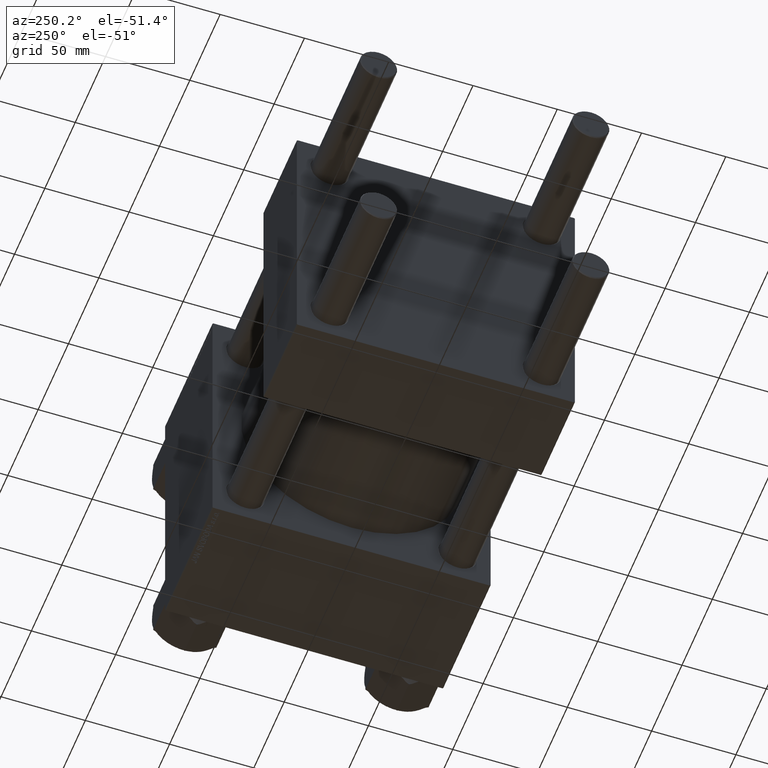
[diagram: clean part render]
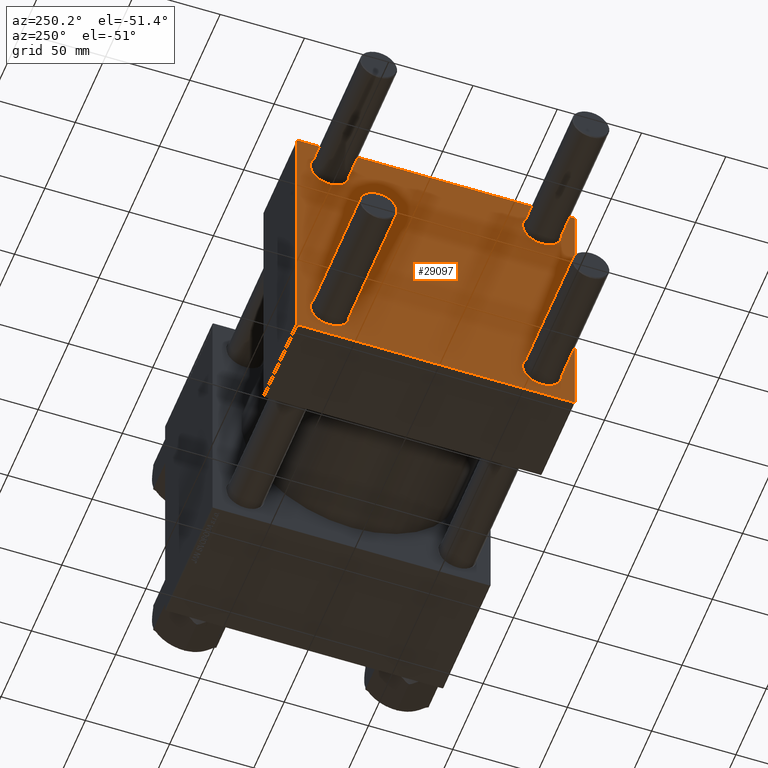
[diagram: same view with one face highlighted and labeled with its STEP entity id]
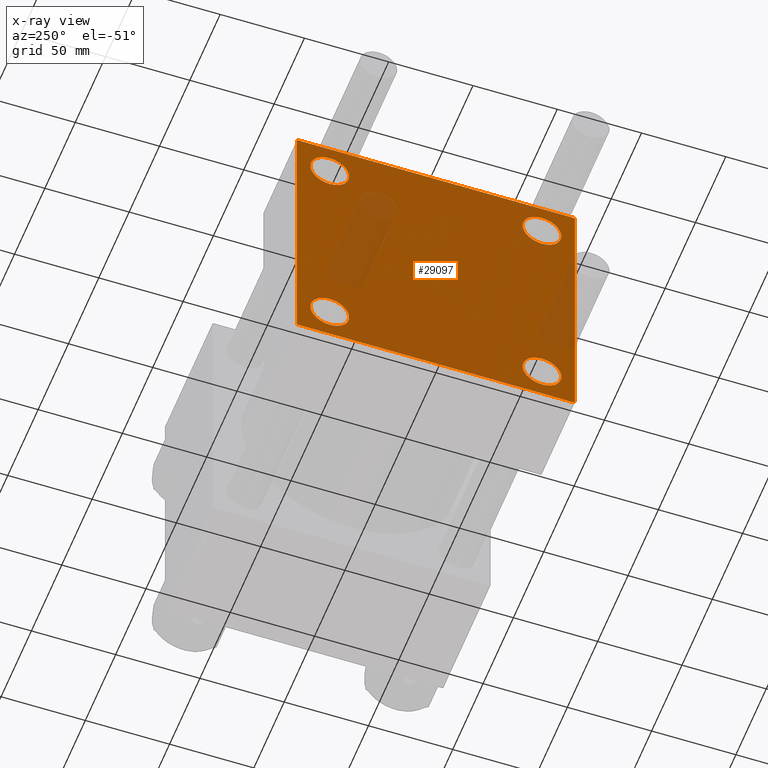
[diagram: x-ray of the same camera — body ghosted, the highlighted face saturated]
A machine part, auxiliary view. The second image highlights one B-rep face of the part: STEP entity #29097.
The next image is the same camera in x-ray: the body ghosted, the highlighted face saturated — about 12% of this face is hidden behind the body in this view.
In plain terms, the highlighted planar face has unit normal (-1, 0, 0).
Its self-contained STEP definition (entity closure, byte-faithful):
#249 = VERTEX_POINT ( 'NONE', #44050 ) ;
#412 = VERTEX_POINT ( 'NONE', #22389 ) ;
#742 = CARTESIAN_POINT ( 'NONE',  ( 0.000000000000000000, -82.49999999999997158, 82.00000000000001421 ) ) ;
#793 = CARTESIAN_POINT ( 'NONE',  ( 0.000000000000000000, 0.000000000000000000, 0.000000000000000000 ) ) ;
#1650 = VERTEX_POINT ( 'NONE', #30371 ) ;
#1796 = CARTESIAN_POINT ( 'NONE',  ( 0.000000000000000000, 62.95000000000000284, -74.45000000000001705 ) ) ;
#2097 = CARTESIAN_POINT ( 'NONE',  ( 0.000000000000000000, 82.00000000000005684, 82.50000000000002842 ) ) ;
#2507 = AXIS2_PLACEMENT_3D ( 'NONE', #45913, #11083, #13887 ) ;
#2614 = DIRECTION ( 'NONE',  ( 0.000000000000000000, 0.000000000000000000, 1.000000000000000000 ) ) ;
#3009 = DIRECTION ( 'NONE',  ( 0.000000000000000000, -1.000000000000000000, -1.682156097916903588E-16 ) ) ;
#3322 = VECTOR ( 'NONE', #46596, 1000.000000000000114 ) ;
#3383 = CIRCLE ( 'NONE', #43981, 11.50000000000001066 ) ;
#3521 = VECTOR ( 'NONE', #24739, 1000.000000000000000 ) ;
#4362 = FACE_OUTER_BOUND ( 'NONE', #17894, .T. ) ;
#4981 = AXIS2_PLACEMENT_3D ( 'NONE', #16638, #24248, #40293 ) ;
#5298 = CIRCLE ( 'NONE', #33732, 11.50000000000001066 ) ;
#5376 = ORIENTED_EDGE ( 'NONE', *, *, #16664, .T. ) ;
#5434 = DIRECTION ( 'NONE',  ( 0.000000000000000000, 0.000000000000000000, 1.000000000000000000 ) ) ;
#5920 = CARTESIAN_POINT ( 'NONE',  ( 0.000000000000000000, -82.25000000000000000, 82.25000000000000000 ) ) ;
#6027 = VECTOR ( 'NONE', #20428, 999.9999999999998863 ) ;
#6363 = ORIENTED_EDGE ( 'NONE', *, *, #24856, .T. ) ;
#6583 = AXIS2_PLACEMENT_3D ( 'NONE', #40505, #44575, #47640 ) ;
#6604 = DIRECTION ( 'NONE',  ( 0.000000000000000000, 0.7071067811865474617, -0.7071067811865474617 ) ) ;
#6628 = EDGE_CURVE ( 'NONE', #25529, #249, #47175, .T. ) ;
#6926 = LINE ( 'NONE', #5920, #44034 ) ;
#7090 = EDGE_CURVE ( 'NONE', #37284, #37591, #3383, .T. ) ;
#7329 = CARTESIAN_POINT ( 'NONE',  ( 0.000000000000000000, 82.50000000000002842, -82.49999999999997158 ) ) ;
#7519 = ORIENTED_EDGE ( 'NONE', *, *, #12418, .T. ) ;
#7697 = EDGE_LOOP ( 'NONE', ( #6363, #24058 ) ) ;
#8438 = FACE_BOUND ( 'NONE', #17183, .T. ) ;
#8975 = EDGE_CURVE ( 'NONE', #40522, #40704, #25222, .T. ) ;
#9256 = LINE ( 'NONE', #20926, #3521 ) ;
#9270 = DIRECTION ( 'NONE',  ( 0.000000000000000000, 0.000000000000000000, -1.000000000000000000 ) ) ;
#10073 = ORIENTED_EDGE ( 'NONE', *, *, #10142, .T. ) ;
#10137 = ORIENTED_EDGE ( 'NONE', *, *, #8975, .T. ) ;
#10142 = EDGE_CURVE ( 'NONE', #37591, #37284, #17961, .T. ) ;
#10716 = VECTOR ( 'NONE', #6604, 1000.000000000000114 ) ;
#10995 = EDGE_CURVE ( 'NONE', #12117, #412, #26880, .T. ) ;
#11083 = DIRECTION ( 'NONE',  ( 1.000000000000000000, -0.000000000000000000, -0.000000000000000000 ) ) ;
#11232 = CARTESIAN_POINT ( 'NONE',  ( 0.000000000000000000, -62.94999999999998153, -74.45000000000003126 ) ) ;
#11468 = VECTOR ( 'NONE', #9270, 1000.000000000000000 ) ;
#11524 = VECTOR ( 'NONE', #3009, 1000.000000000000000 ) ;
#11999 = DIRECTION ( 'NONE',  ( 0.000000000000000000, 0.000000000000000000, 1.000000000000000000 ) ) ;
#12117 = VERTEX_POINT ( 'NONE', #31684 ) ;
#12418 = EDGE_CURVE ( 'NONE', #16978, #43971, #35906, .T. ) ;
#12616 = CARTESIAN_POINT ( 'NONE',  ( 0.000000000000000000, 82.50000000000002842, -82.00000000000000000 ) ) ;
#13887 = DIRECTION ( 'NONE',  ( 0.000000000000000000, 0.000000000000000000, 1.000000000000000000 ) ) ;
#13911 = DIRECTION ( 'NONE',  ( 1.000000000000000000, -0.000000000000000000, -0.000000000000000000 ) ) ;
#15432 = ORIENTED_EDGE ( 'NONE', *, *, #38116, .F. ) ;
#15805 = FACE_BOUND ( 'NONE', #42783, .T. ) ;
#16605 = EDGE_CURVE ( 'NONE', #23138, #1650, #9256, .T. ) ;
#16626 = LINE ( 'NONE', #44595, #6027 ) ;
#16638 = CARTESIAN_POINT ( 'NONE',  ( 0.000000000000000000, -62.94999999999998153, 62.95000000000001705 ) ) ;
#16664 = EDGE_CURVE ( 'NONE', #40704, #40522, #40886, .T. ) ;
#16978 = VERTEX_POINT ( 'NONE', #1796 ) ;
#17138 = ORIENTED_EDGE ( 'NONE', *, *, #41074, .T. ) ;
#17183 = EDGE_LOOP ( 'NONE', ( #10073, #23221 ) ) ;
#17727 = CARTESIAN_POINT ( 'NONE',  ( 0.000000000000000000, 62.95000000000000284, -62.95000000000000284 ) ) ;
#17894 = EDGE_LOOP ( 'NONE', ( #49967, #38800, #21314, #27655, #37928, #42387, #15432, #42670 ) ) ;
#17961 = CIRCLE ( 'NONE', #4981, 11.50000000000001066 ) ;
#18057 = CIRCLE ( 'NONE', #22920, 11.50000000000001066 ) ;
#20366 = LINE ( 'NONE', #44295, #34985 ) ;
#20428 = DIRECTION ( 'NONE',  ( 0.000000000000000000, -0.7071067811865376918, 0.7071067811865574537 ) ) ;
#20926 = CARTESIAN_POINT ( 'NONE',  ( 0.000000000000000000, -82.49999999999997158, 82.50000000000001421 ) ) ;
#21314 = ORIENTED_EDGE ( 'NONE', *, *, #10995, .T. ) ;
#22389 = CARTESIAN_POINT ( 'NONE',  ( 0.000000000000000000, -82.00000000000000000, -82.50000000000000000 ) ) ;
#22920 = AXIS2_PLACEMENT_3D ( 'NONE', #17727, #33010, #25610 ) ;
#22937 = CARTESIAN_POINT ( 'NONE',  ( 0.000000000000000000, 82.25000000000001421, -82.25000000000001421 ) ) ;
#23138 = VERTEX_POINT ( 'NONE', #742 ) ;
#23189 = PLANE ( 'NONE',  #39701 ) ;
#23221 = ORIENTED_EDGE ( 'NONE', *, *, #7090, .T. ) ;
#24058 = ORIENTED_EDGE ( 'NONE', *, *, #6628, .T. ) ;
#24248 = DIRECTION ( 'NONE',  ( 1.000000000000000000, -0.000000000000000000, -0.000000000000000000 ) ) ;
#24739 = DIRECTION ( 'NONE',  ( 0.000000000000000000, -1.682156097916903588E-16, -1.000000000000000000 ) ) ;
#24856 = EDGE_CURVE ( 'NONE', #249, #25529, #5298, .T. ) ;
#25222 = CIRCLE ( 'NONE', #2507, 11.50000000000001066 ) ;
#25529 = VERTEX_POINT ( 'NONE', #34908 ) ;
#25610 = DIRECTION ( 'NONE',  ( 0.000000000000000000, 0.000000000000000000, 1.000000000000000000 ) ) ;
#26418 = DIRECTION ( 'NONE',  ( 0.000000000000000000, 0.000000000000000000, 1.000000000000000000 ) ) ;
#26880 = LINE ( 'NONE', #7329, #11524 ) ;
#27655 = ORIENTED_EDGE ( 'NONE', *, *, #45779, .T. ) ;
#29057 = CARTESIAN_POINT ( 'NONE',  ( 0.000000000000000000, -62.94999999999998153, -62.95000000000001705 ) ) ;
#29097 = ADVANCED_FACE ( 'NONE', ( #8438, #43027, #15805, #31317, #4362 ), #23189, .T. ) ;
#29300 = CARTESIAN_POINT ( 'NONE',  ( 0.000000000000000000, 62.95000000000000284, -62.95000000000000284 ) ) ;
#29538 = DIRECTION ( 'NONE',  ( -0.000000000000000000, 0.7071067811865474617, 0.7071067811865474617 ) ) ;
#29580 = CARTESIAN_POINT ( 'NONE',  ( 0.000000000000000000, -81.99999999999997158, 82.50000000000001421 ) ) ;
#29975 = DIRECTION ( 'NONE',  ( 1.000000000000000000, -0.000000000000000000, -0.000000000000000000 ) ) ;
#30371 = CARTESIAN_POINT ( 'NONE',  ( 0.000000000000000000, -82.50000000000000000, -81.99999999999998579 ) ) ;
#31317 = FACE_BOUND ( 'NONE', #7697, .T. ) ;
#31684 = CARTESIAN_POINT ( 'NONE',  ( 0.000000000000000000, 82.00000000000005684, -82.49999999999997158 ) ) ;
#32817 = CARTESIAN_POINT ( 'NONE',  ( 0.000000000000000000, 82.25000000000002842, 82.25000000000002842 ) ) ;
#33010 = DIRECTION ( 'NONE',  ( 1.000000000000000000, -0.000000000000000000, -0.000000000000000000 ) ) ;
#33028 = VERTEX_POINT ( 'NONE', #29580 ) ;
#33732 = AXIS2_PLACEMENT_3D ( 'NONE', #37302, #13911, #45195 ) ;
#33754 = VERTEX_POINT ( 'NONE', #12616 ) ;
#33813 = CARTESIAN_POINT ( 'NONE',  ( 0.000000000000000000, -62.94999999999998153, 62.95000000000001705 ) ) ;
#33877 = CARTESIAN_POINT ( 'NONE',  ( 0.000000000000000000, 82.50000000000002842, 82.00000000000005684 ) ) ;
#34908 = CARTESIAN_POINT ( 'NONE',  ( 0.000000000000000000, 62.95000000000000284, 51.44999999999999574 ) ) ;
#34985 = VECTOR ( 'NONE', #36651, 1000.000000000000000 ) ;
#35200 = VERTEX_POINT ( 'NONE', #33877 ) ;
#35392 = LINE ( 'NONE', #22937, #3322 ) ;
#35906 = CIRCLE ( 'NONE', #41616, 11.50000000000001066 ) ;
#36461 = CARTESIAN_POINT ( 'NONE',  ( 0.000000000000000000, 82.50000000000002842, 82.50000000000002842 ) ) ;
#36651 = DIRECTION ( 'NONE',  ( 0.000000000000000000, -1.000000000000000000, -8.410780489584519171E-17 ) ) ;
#36784 = EDGE_LOOP ( 'NONE', ( #10137, #5376 ) ) ;
#37284 = VERTEX_POINT ( 'NONE', #46781 ) ;
#37302 = CARTESIAN_POINT ( 'NONE',  ( 0.000000000000000000, 62.95000000000000284, 62.95000000000000284 ) ) ;
#37454 = DIRECTION ( 'NONE',  ( 1.000000000000000000, -0.000000000000000000, -0.000000000000000000 ) ) ;
#37591 = VERTEX_POINT ( 'NONE', #39078 ) ;
#37898 = EDGE_CURVE ( 'NONE', #35200, #33754, #40787, .T. ) ;
#37928 = ORIENTED_EDGE ( 'NONE', *, *, #16605, .F. ) ;
#37980 = EDGE_CURVE ( 'NONE', #33754, #12117, #35392, .T. ) ;
#38116 = EDGE_CURVE ( 'NONE', #48218, #33028, #20366, .T. ) ;
#38800 = ORIENTED_EDGE ( 'NONE', *, *, #37980, .T. ) ;
#39078 = CARTESIAN_POINT ( 'NONE',  ( 0.000000000000000000, -62.94999999999998153, 74.45000000000003126 ) ) ;
#39701 = AXIS2_PLACEMENT_3D ( 'NONE', #793, #46840, #11999 ) ;
#40293 = DIRECTION ( 'NONE',  ( 0.000000000000000000, 0.000000000000000000, 1.000000000000000000 ) ) ;
#40505 = CARTESIAN_POINT ( 'NONE',  ( 0.000000000000000000, 62.95000000000000284, 62.95000000000000284 ) ) ;
#40522 = VERTEX_POINT ( 'NONE', #44574 ) ;
#40542 = EDGE_CURVE ( 'NONE', #23138, #33028, #6926, .T. ) ;
#40704 = VERTEX_POINT ( 'NONE', #11232 ) ;
#40787 = LINE ( 'NONE', #36461, #11468 ) ;
#40801 = EDGE_CURVE ( 'NONE', #48218, #35200, #48576, .T. ) ;
#40886 = CIRCLE ( 'NONE', #41725, 11.50000000000001066 ) ;
#41074 = EDGE_CURVE ( 'NONE', #43971, #16978, #18057, .T. ) ;
#41616 = AXIS2_PLACEMENT_3D ( 'NONE', #29300, #37454, #2614 ) ;
#41725 = AXIS2_PLACEMENT_3D ( 'NONE', #29057, #44588, #5434 ) ;
#42387 = ORIENTED_EDGE ( 'NONE', *, *, #40542, .T. ) ;
#42670 = ORIENTED_EDGE ( 'NONE', *, *, #40801, .T. ) ;
#42783 = EDGE_LOOP ( 'NONE', ( #17138, #7519 ) ) ;
#43027 = FACE_BOUND ( 'NONE', #36784, .T. ) ;
#43971 = VERTEX_POINT ( 'NONE', #46705 ) ;
#43981 = AXIS2_PLACEMENT_3D ( 'NONE', #33813, #29975, #26418 ) ;
#44034 = VECTOR ( 'NONE', #29538, 1000.000000000000114 ) ;
#44050 = CARTESIAN_POINT ( 'NONE',  ( 0.000000000000000000, 62.95000000000000284, 74.45000000000001705 ) ) ;
#44295 = CARTESIAN_POINT ( 'NONE',  ( 0.000000000000000000, 82.50000000000002842, 82.50000000000002842 ) ) ;
#44574 = CARTESIAN_POINT ( 'NONE',  ( 0.000000000000000000, -62.94999999999998153, -51.45000000000000995 ) ) ;
#44575 = DIRECTION ( 'NONE',  ( 1.000000000000000000, -0.000000000000000000, -0.000000000000000000 ) ) ;
#44588 = DIRECTION ( 'NONE',  ( 1.000000000000000000, -0.000000000000000000, -0.000000000000000000 ) ) ;
#44595 = CARTESIAN_POINT ( 'NONE',  ( 0.000000000000000000, -82.25000000000115108, -82.24999999999886313 ) ) ;
#45195 = DIRECTION ( 'NONE',  ( 0.000000000000000000, 0.000000000000000000, 1.000000000000000000 ) ) ;
#45779 = EDGE_CURVE ( 'NONE', #412, #1650, #16626, .T. ) ;
#45913 = CARTESIAN_POINT ( 'NONE',  ( 0.000000000000000000, -62.94999999999998153, -62.95000000000001705 ) ) ;
#46596 = DIRECTION ( 'NONE',  ( -0.000000000000000000, -0.7071067811865474617, -0.7071067811865474617 ) ) ;
#46705 = CARTESIAN_POINT ( 'NONE',  ( 0.000000000000000000, 62.95000000000000284, -51.44999999999999574 ) ) ;
#46781 = CARTESIAN_POINT ( 'NONE',  ( 0.000000000000000000, -62.94999999999998153, 51.45000000000000995 ) ) ;
#46840 = DIRECTION ( 'NONE',  ( -1.000000000000000000, 0.000000000000000000, 0.000000000000000000 ) ) ;
#47175 = CIRCLE ( 'NONE', #6583, 11.50000000000001066 ) ;
#47640 = DIRECTION ( 'NONE',  ( 0.000000000000000000, 0.000000000000000000, 1.000000000000000000 ) ) ;
#48218 = VERTEX_POINT ( 'NONE', #2097 ) ;
#48576 = LINE ( 'NONE', #32817, #10716 ) ;
#49967 = ORIENTED_EDGE ( 'NONE', *, *, #37898, .T. ) ;